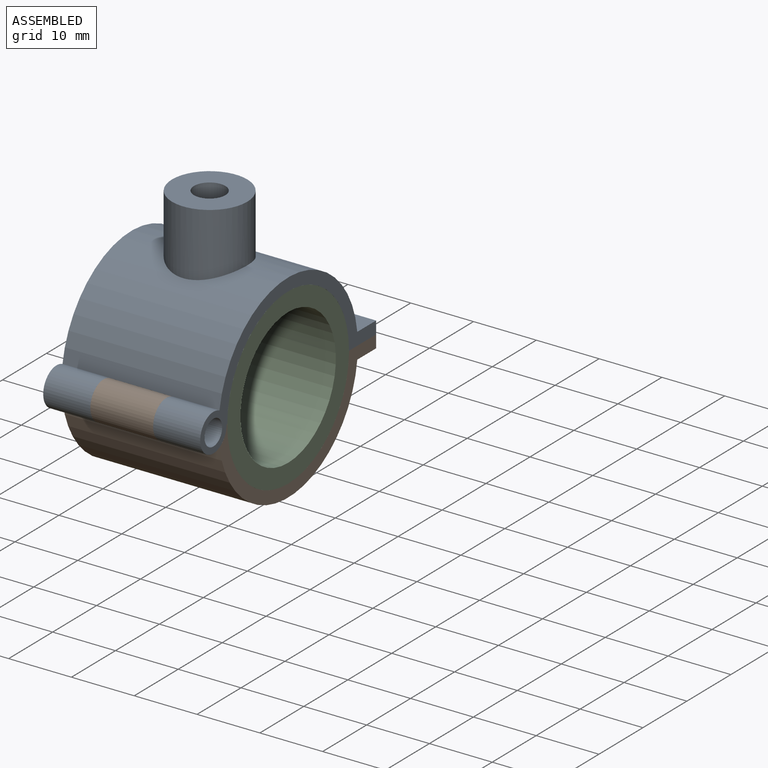
[diagram: assembled view]
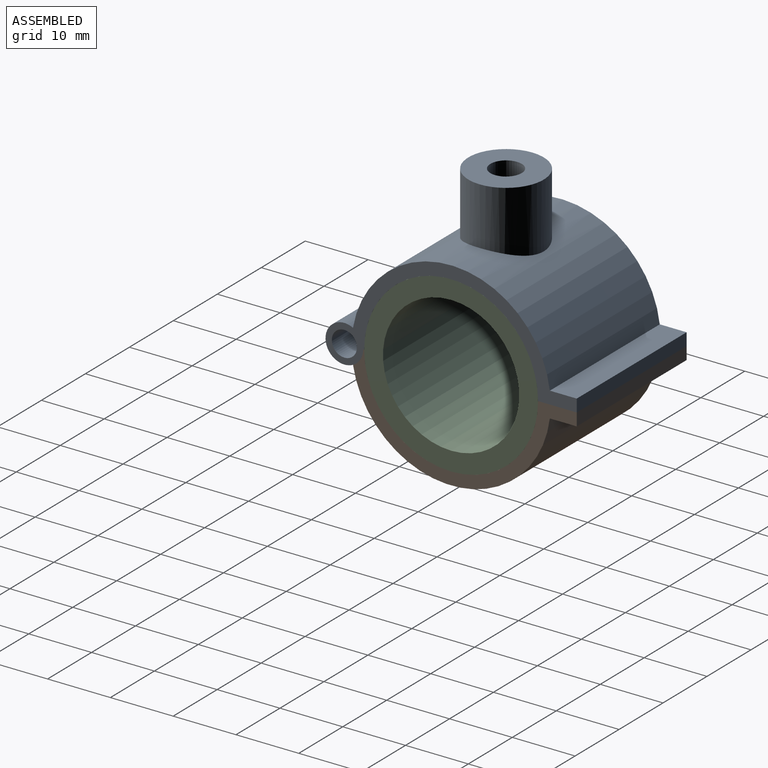
[diagram: assembled view, second angle]
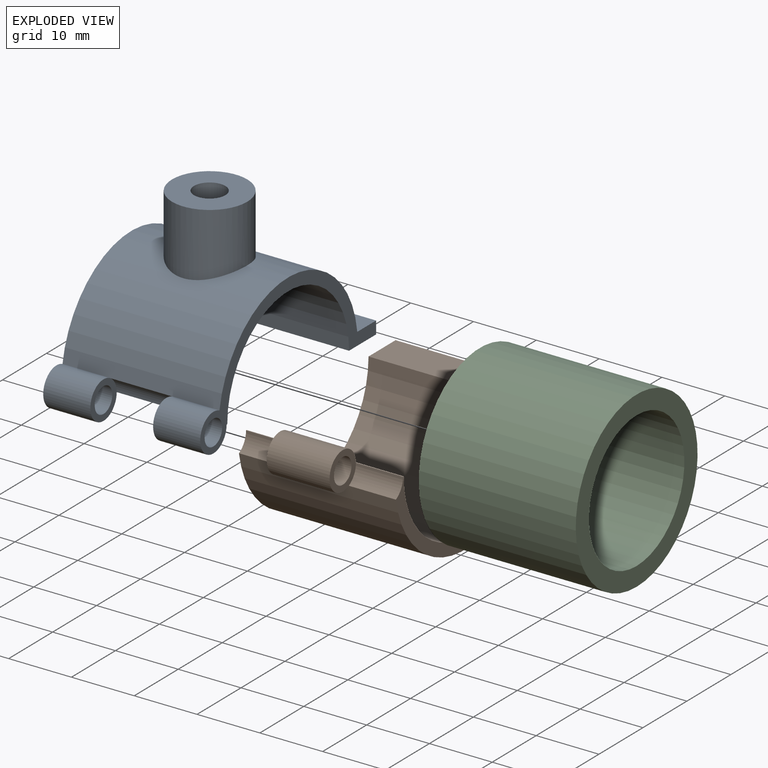
[diagram: exploded view]
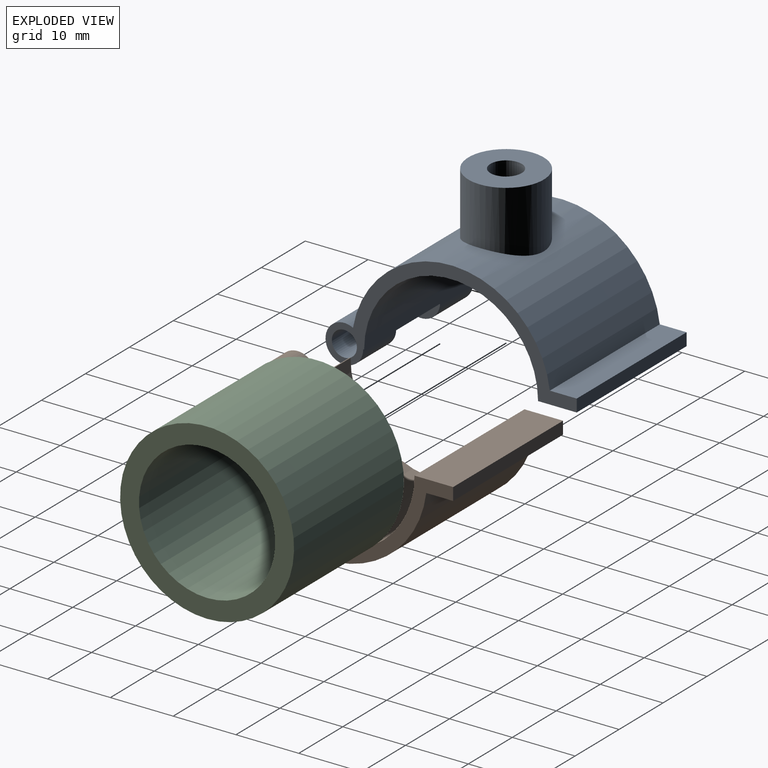
[diagram: exploded view, second angle]
ASSEMBLY  parts=3 mates=2
PART A: 19 faces, bbox 25x40x28 mm
  f0: cylinder r=13.85mm len=27.7mm, axis (-1,0,0), area 1073.6mm2, adj f3,f7,f8,f9,f17
  f1: cylinder r=15.85mm len=31.35mm, axis (-1,0,0), area 1012.6mm2, adj f2,f5,f6,f8,f9,f10,f15
  f2: cylinder r=3mm len=7.5mm, axis (-1,0,0), area 116.7mm2, adj f1,f7,f9,f12
  f3: plane 25x6.15mm, normal (0,0,-1), area 153.8mm2, adj f0,f4,f8,f9
  f4: plane 25x2mm, normal (0,1,0), area 50mm2, adj f3,f5,f8,f9
  f5: plane 25x4.28mm, normal (0,0,1), area 106.9mm2, adj f1,f4,f8,f9
  f6: cylinder r=3mm len=7.5mm, axis (-1,0,0), area 116.7mm2, adj f1,f7,f8,f11
  f7: plane 25x0.15mm, normal (0,0,-1), area 3.8mm2, adj f0,f2,f6,f8,f9,f10
  f8: plane 40x18.85mm, normal (1,0,0), area 113.9mm2, adj f0,f1,f3,f4,f5,f6,f7,f14
  f9: plane 40x18.85mm, normal (-1,0,0), area 113.9mm2, adj f0,f1,f2,f3,f4,f5,f7,f13
  f10: cylinder r=3mm len=10mm, axis (-1,0,0), area 32.8mm2, adj f1,f7,f11,f12
  f11: plane 6x6mm, normal (-1,0,0), area 15.7mm2, adj f6,f10,f14
  f12: plane 6x6mm, normal (1,0,0), area 15.7mm2, adj f2,f10,f13
  f13: cylinder r=2mm len=7.5mm, axis (1,0,0), area 94.2mm2, adj f9,f12
  f14: cylinder r=2mm len=7.5mm, axis (1,0,0), area 94.2mm2, adj f8,f11
  f15: cylinder r=6mm len=12mm, axis (0,0,-1), area 366.9mm2, adj f1,f16
  f16: plane 12x12mm, normal (0,0,1), area 93.5mm2, adj f15,f18
  f17: cone r=0mm half-angle=59deg, axis (0,0,1), area 6.4mm2, adj f0,f18
  f18: cylinder r=2.5mm len=11mm, axis (0,0,1), area 172.8mm2, adj f16,f17
PART B: 14 faces, bbox 25x40x18.9 mm
  f0: cylinder r=3mm len=7.5mm, axis (-1,0,0), area 24.6mm2, adj f3,f5,f9,f12
  f1: plane 25x6.15mm, normal (0,0,1), area 153.8mm2, adj f2,f7,f8,f9
  f2: cylinder r=13.85mm len=27.7mm, axis (-1,0,0), area 1087.8mm2, adj f1,f3,f8,f9
  f3: plane 25x0.15mm, normal (0,0,1), area 3.8mm2, adj f0,f2,f4,f8,f9,f10
  f4: cylinder r=3mm len=7.5mm, axis (-1,0,0), area 24.6mm2, adj f3,f5,f8,f11
  f5: cylinder r=15.85mm len=31.35mm, axis (-1,0,0), area 1127.8mm2, adj f0,f4,f6,f8,f9,f10
  f6: plane 25x4.28mm, normal (0,0,-1), area 106.9mm2, adj f5,f7,f8,f9
  f7: plane 25x2mm, normal (0,1,0), area 50mm2, adj f1,f6,f8,f9
  f8: plane 35.62x15.85mm, normal (1,0,0), area 98.2mm2, adj f1,f2,f3,f4,f5,f6,f7
  f9: plane 35.62x15.85mm, normal (-1,0,0), area 98.2mm2, adj f0,f1,f2,f3,f5,f6,f7
  f10: cylinder r=3mm len=10mm, axis (-1,0,0), area 155.7mm2, adj f3,f5,f11,f12
  f11: plane 6x6mm, normal (1,0,0), area 15.7mm2, adj f4,f10,f13
  f12: plane 6x6mm, normal (-1,0,0), area 15.7mm2, adj f0,f10,f13
  f13: cylinder r=2mm len=10mm, axis (1,0,0), area 125.7mm2, adj f11,f12
PART C: 4 faces, bbox 25x27.7x27.7 mm
  f0: cylinder r=10.85mm len=25mm, axis (-1,0,0), area 1704.3mm2, adj f2,f3
  f1: cylinder r=13.85mm len=27.7mm, axis (-1,0,0), area 2175.6mm2, adj f2,f3
  f2: plane 27.7x27.7mm, normal (1,0,0), area 232.8mm2, adj f0,f1
  f3: plane 27.7x27.7mm, normal (-1,0,0), area 232.8mm2, adj f0,f1
PLACE A at identity
PLACE B at identity
PLACE C at identity
MATE fastened A.f2 <-> B.f10  axis (1,0,0) through (-5,-17,0)mm
MATE fastened A.f0 <-> C.f0  axis (1,0,0) through (12.5,0,0)mm
